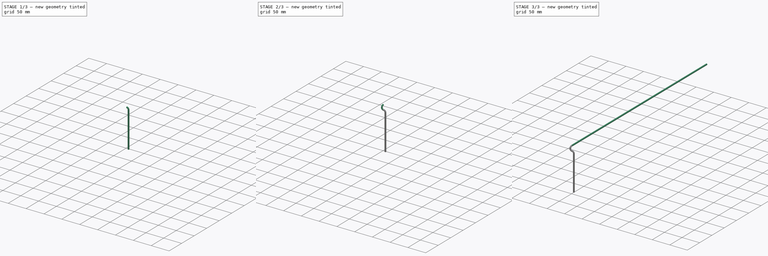
[diagram: build sequence overview — one tinted view per stage of 3, left to right]
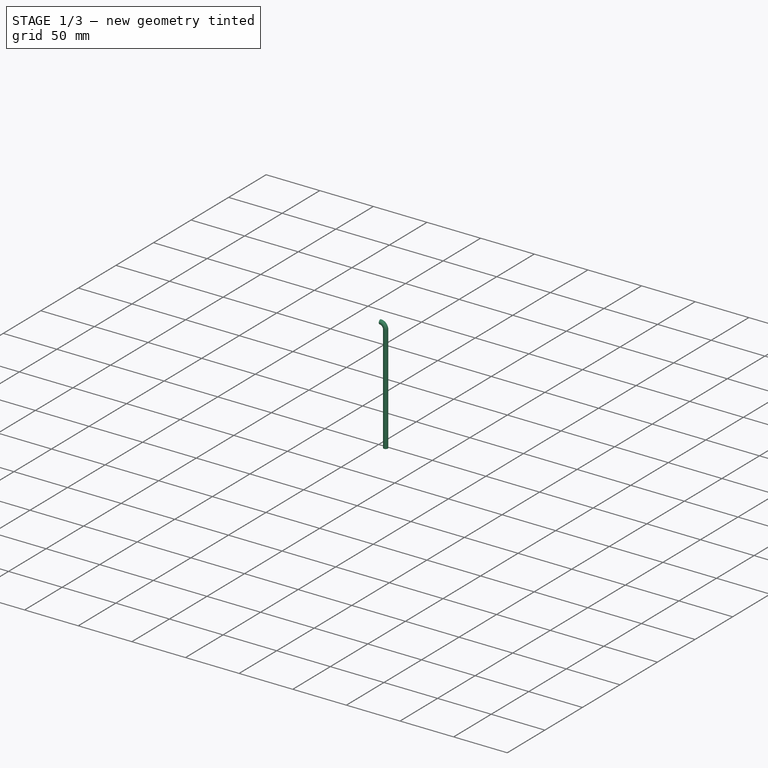
[diagram: stage 1 of 3 — iso view after this stage's code; geometry added in this stage tinted green]
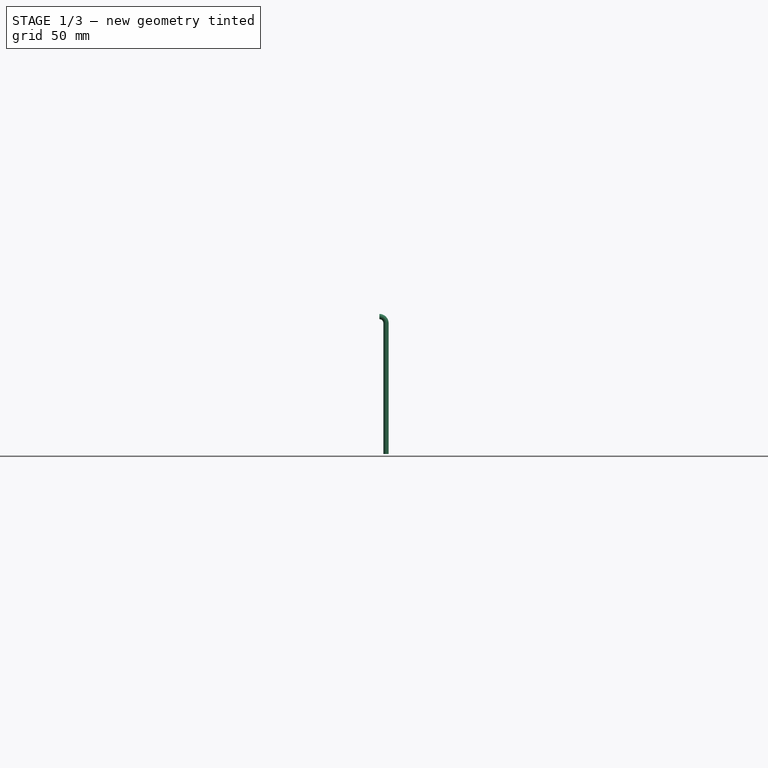
[diagram: stage 1 of 3 — front view after this stage's code; geometry added in this stage tinted green]
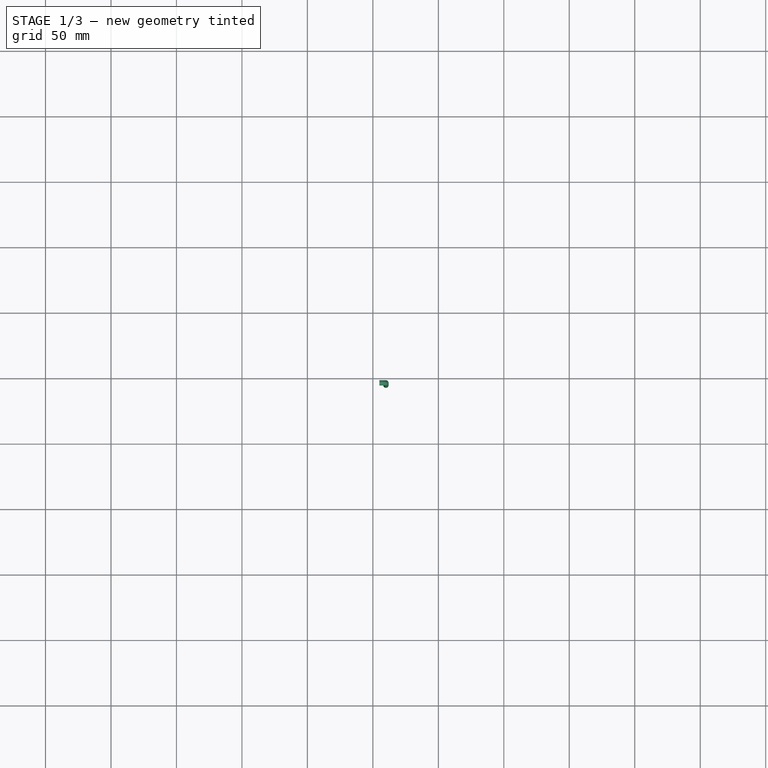
[diagram: stage 1 of 3 — top view after this stage's code; geometry added in this stage tinted green]
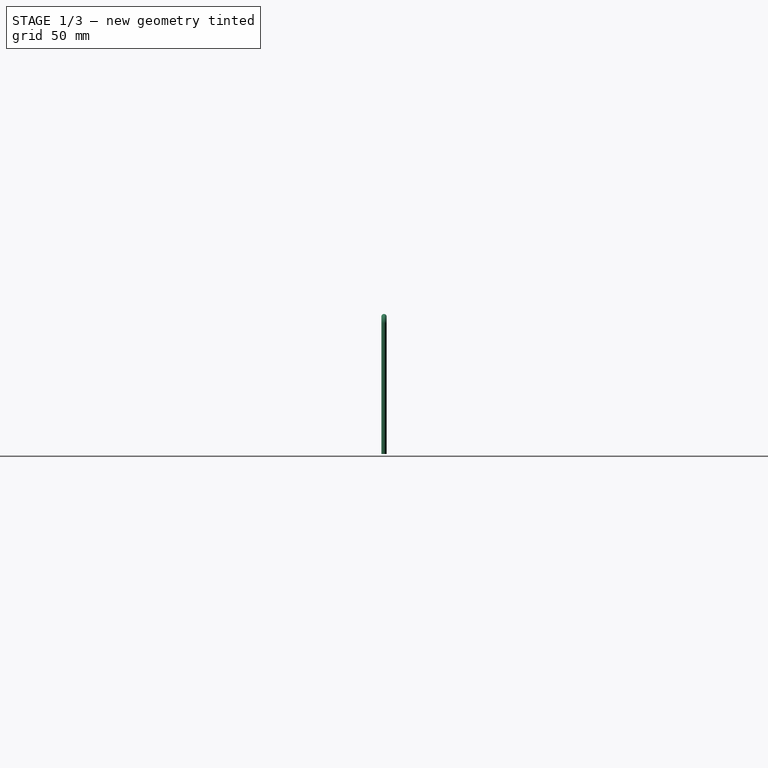
[diagram: stage 1 of 3 — right view after this stage's code; geometry added in this stage tinted green]
FCSTD DOCUMENT  (FreeCAD 0.17R11834 (Git))
Label: lower_wire_HT
License: All rights reserved
LicenseURL: http://en.wikipedia.org/wiki/All_rights_reserved
objects: Sketcher::SketchObject×7, Part::Sweep×5, Part::Compound×1
note: 13 computed .brp shape members not serialized (recipe doc carries the construction recipe); baked Part::Feature solids carry a one-line shape summary decoded from their .brp

FEATURE [Part::Sweep] Sweep003
  Frenet = true
  Sections = -> [Sketch007]
  Solid = true
  Spine = -> Sketch005 [Edge2]
  Transition = 1
FEATURE [Part::Sweep] Sweep004
  Frenet = true
  Sections = -> [Sketch007]
  Solid = true
  Spine = -> Sketch006 [Edge1]
  Transition = 1
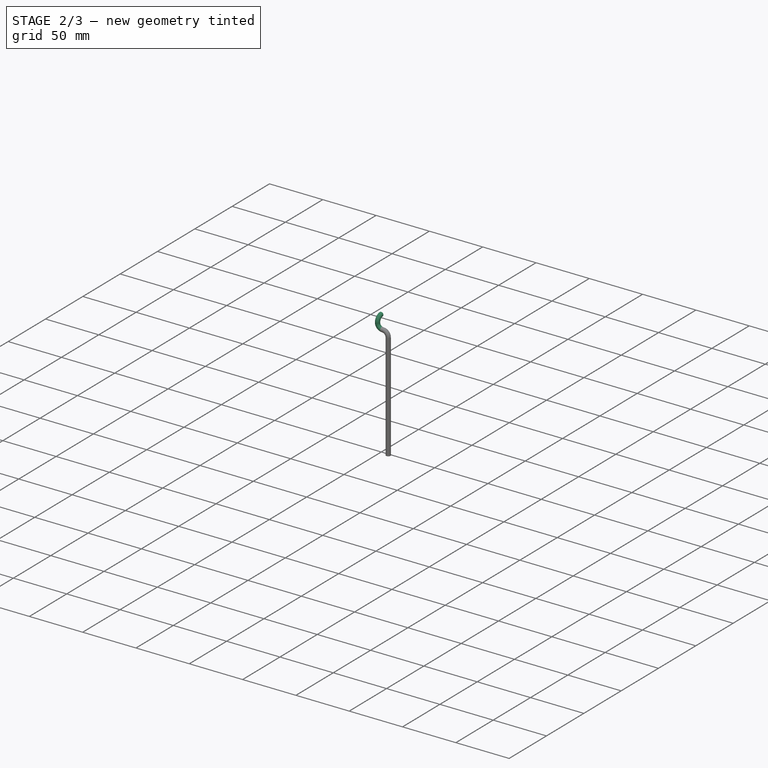
[diagram: stage 2 of 3 — iso view after this stage's code; geometry added in this stage tinted green]
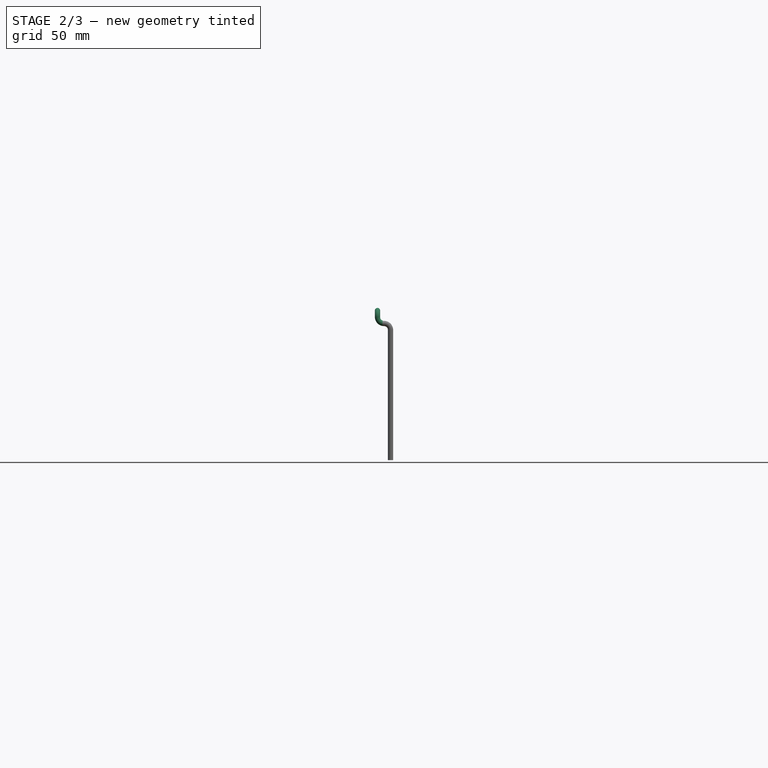
[diagram: stage 2 of 3 — front view after this stage's code; geometry added in this stage tinted green]
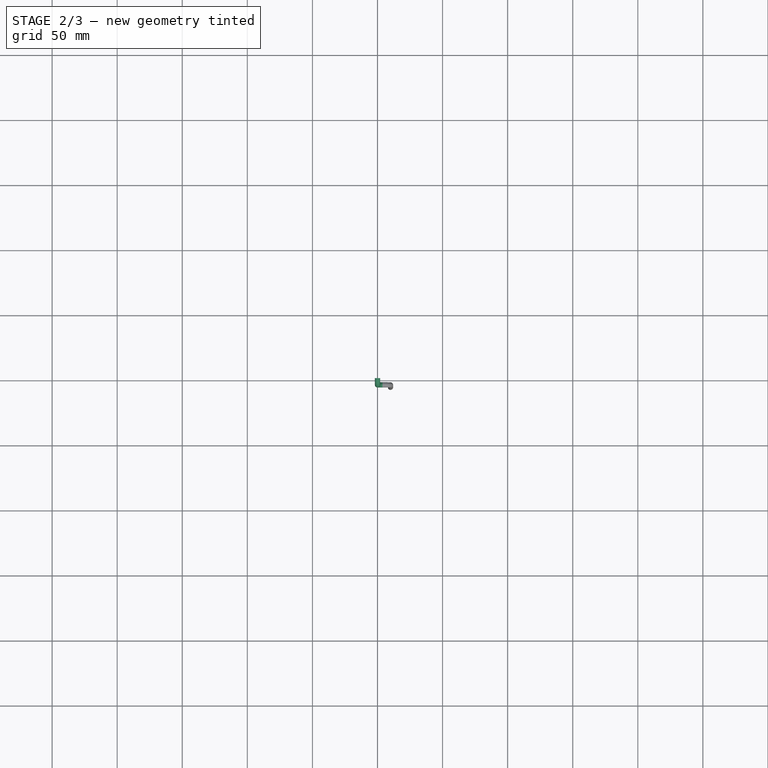
[diagram: stage 2 of 3 — top view after this stage's code; geometry added in this stage tinted green]
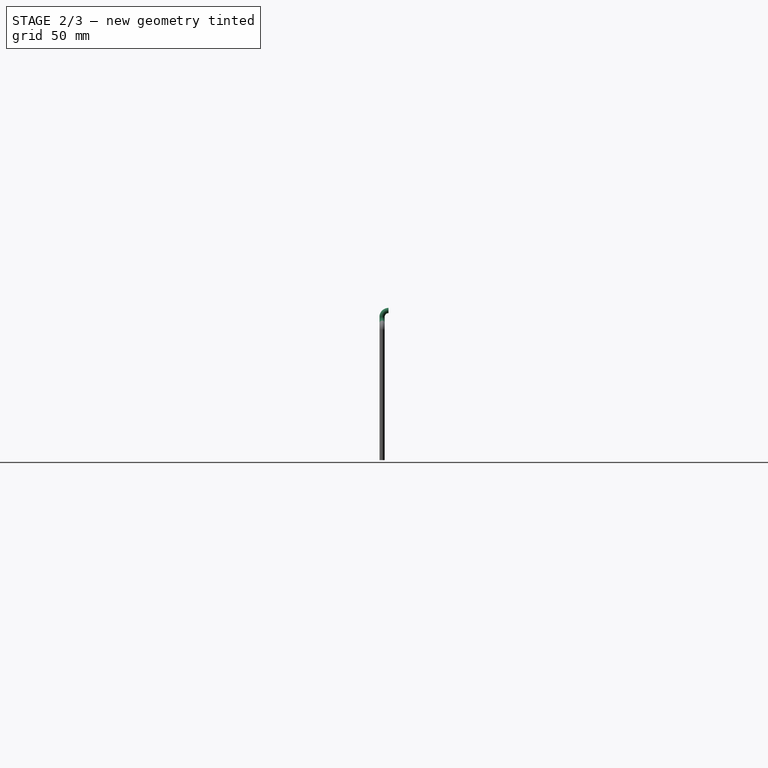
[diagram: stage 2 of 3 — right view after this stage's code; geometry added in this stage tinted green]
FEATURE [Part::Sweep] Sweep001
  Frenet = true
  Sections = -> [Sketch003]
  Solid = true
  Spine = -> Sketch001 [Edge1]
  Transition = 1
FEATURE [Part::Sweep] Sweep002
  Frenet = true
  Sections = -> [Sketch004]
  Solid = true
  Spine = -> Sketch005 [Edge1]
  Transition = 1
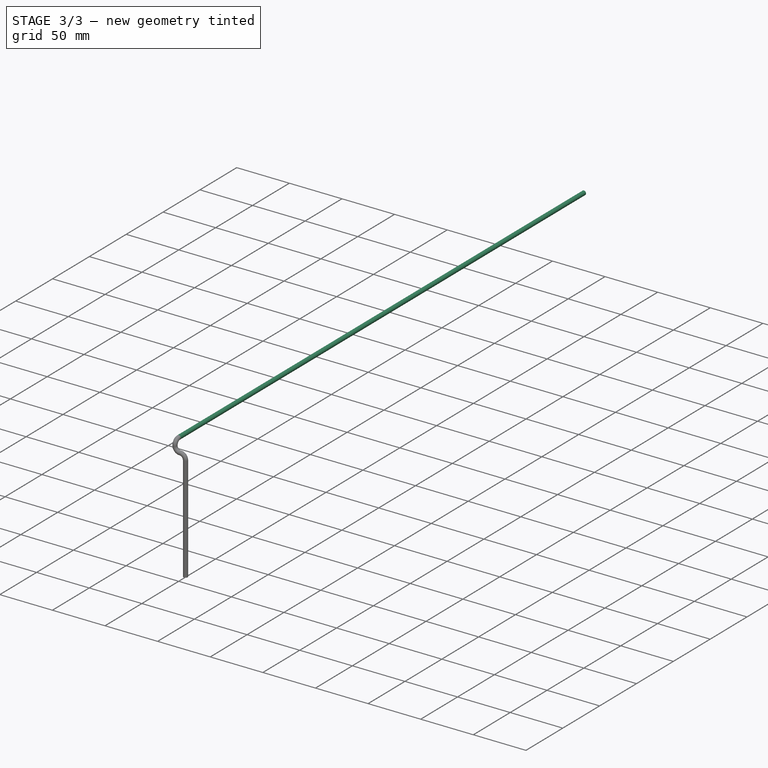
[diagram: stage 3 of 3 — iso view after this stage's code; geometry added in this stage tinted green]
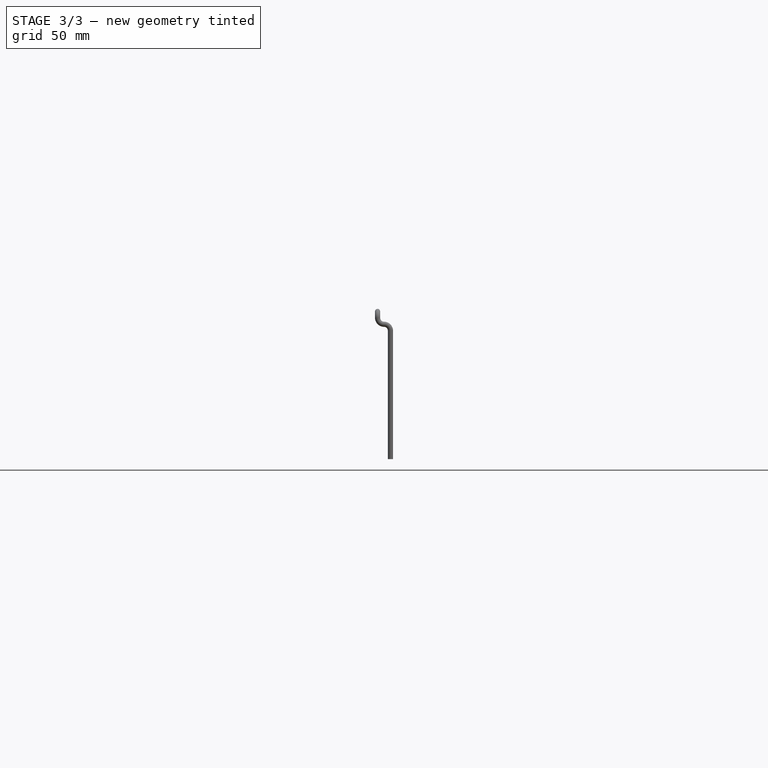
[diagram: stage 3 of 3 — front view after this stage's code; geometry added in this stage tinted green]
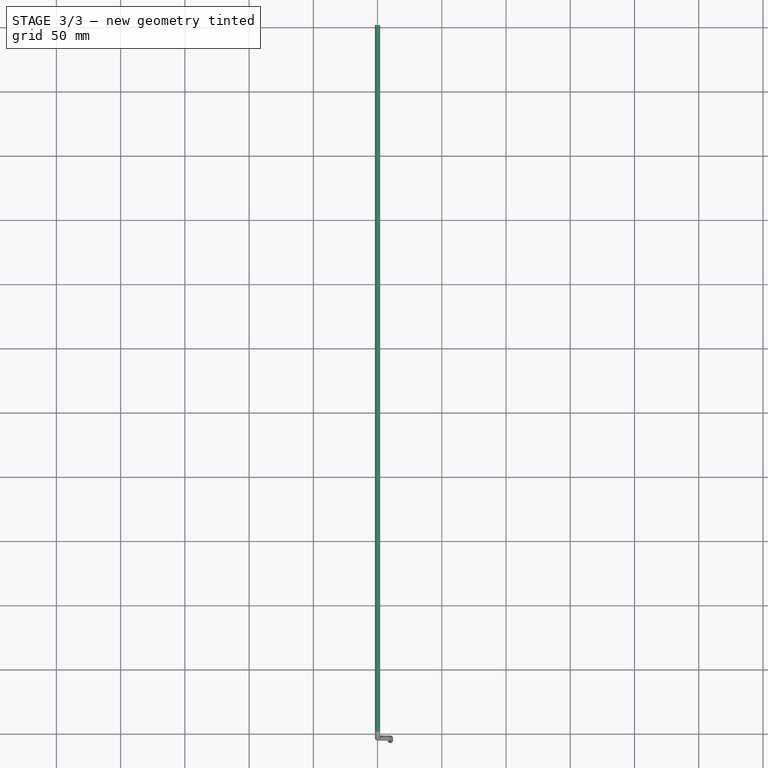
[diagram: stage 3 of 3 — top view after this stage's code; geometry added in this stage tinted green]
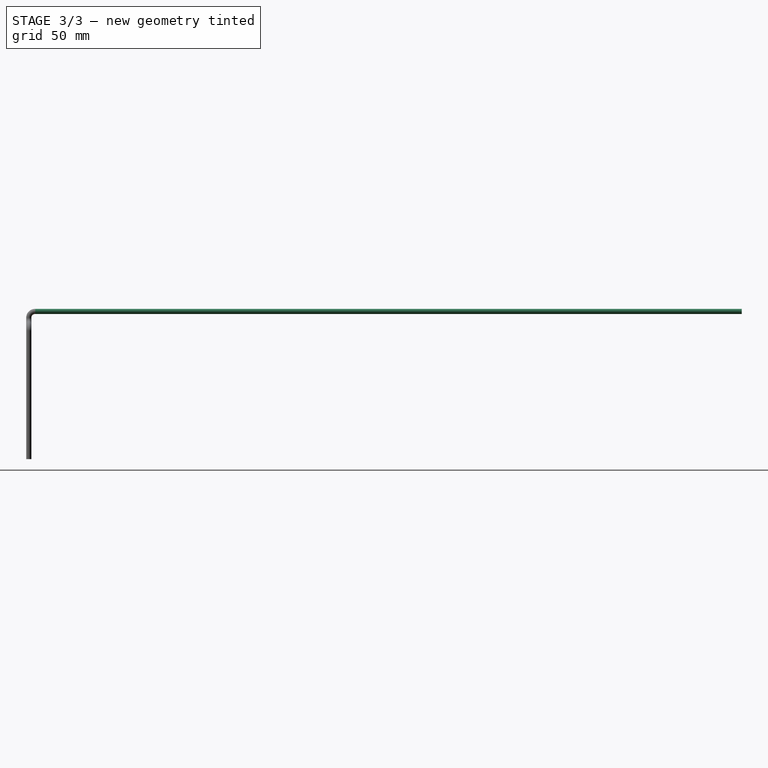
[diagram: stage 3 of 3 — right view after this stage's code; geometry added in this stage tinted green]
FEATURE [Sketcher::SketchObject] Sketch
  sketch-geometry (1):
    g0: LineSegment StartX=0 StartY=0 StartZ=0 EndX=0 EndY=550 EndZ=0
  constraints (3):
    c: Vertical(g0)
    c: Coincident(g0,g-1)
    c: DistanceY(g0,g0) = 550
FEATURE [Sketcher::SketchObject] Sketch001
  Placement = pos=(0,0,0) rot=(0.57735,0.57735,0.57735;2.0944rad)
  sketch-geometry (1):
    g0: ArcOfCircle CenterX=0 CenterY=-5 CenterZ=0 NormalX=0 NormalY=0 NormalZ=1 Radius=5 StartAngle=1.5708 EndAngle=3.14159
  constraints (4):
    c: Coincident(g0,g-1)
    c: DistanceX(g0,g-1) = 0
    c: DistanceY(g0,g-1) = 5
    c: DistanceX(g0,g-1) = 5
FEATURE [Sketcher::SketchObject] Sketch003
  Placement = pos=(0,0,0) rot=(-1,0,0;4.71239rad)
  sketch-geometry (1):
    g0: Circle CenterX=0 CenterY=0 CenterZ=0 NormalX=0 NormalY=0 NormalZ=1 Radius=2
  constraints (2):
    c: Coincident(g0,g-1)
    c: Radius(g0) = 2
FEATURE [Sketcher::SketchObject] Sketch004
  Placement = pos=(0,-5,-5) rot=(0,0,1;0rad)
  sketch-geometry (1):
    g0: Circle CenterX=0 CenterY=0 CenterZ=0 NormalX=0 NormalY=0 NormalZ=1 Radius=2
  constraints (2):
    c: Coincident(g0,g-1)
    c: Radius(g0) = 2
FEATURE [Sketcher::SketchObject] Sketch005
  Placement = pos=(0,-5,0) rot=(-1,0,0;4.71239rad)
  sketch-geometry (2):
    g0: ArcOfCircle CenterX=5 CenterY=-5 CenterZ=0 NormalX=0 NormalY=0 NormalZ=1 Radius=5 StartAngle=3.14159 EndAngle=4.71239
    g1: ArcOfCircle CenterX=5 CenterY=-15 CenterZ=0 NormalX=0 NormalY=0 NormalZ=1 Radius=5 StartAngle=0 EndAngle=1.5708
  constraints (9):
    c: DistanceY(g0,g-1) = 5
    c: DistanceX(g-1,g0) = 0
    c: Radius(g0) = 5
    c: DistanceY(g0,g-1) = 5
    c: DistanceX(g-1,g0) = 5
    c: Coincident(g1,g0)
    c: DistanceX(g-1,g1) = 10
    c: DistanceY(g1,g0) = 5
    c: Radius(g1) = 5
FEATURE [Sketcher::SketchObject] Sketch006
  Placement = pos=(0,-5,0) rot=(-1,0,0;4.71239rad)
  sketch-geometry (1):
    g0: LineSegment StartX=10 StartY=-15 StartZ=0 EndX=10 EndY=-115 EndZ=0
  constraints (4):
    c: Vertical(g0)
    c: DistanceY(g0,g-1) = 15
    c: DistanceY(g0,g0) = 100
    c: DistanceX(g-1,g0) = 10
FEATURE [Sketcher::SketchObject] Sketch007
  Placement = pos=(0,0,-15) rot=(0,0,1;0rad)
  sketch-geometry (1):
    g0: Circle CenterX=10 CenterY=-5 CenterZ=0 NormalX=0 NormalY=0 NormalZ=1 Radius=2
  constraints (3):
    c: DistanceX(g-1,g0) = 10
    c: DistanceY(g0,g-1) = 5
    c: Radius(g0) = 2
FEATURE [Part::Sweep] Sweep
  Frenet = true
  Sections = -> [Sketch003]
  Solid = true
  Spine = -> Sketch [Edge1]
  Transition = 1
FEATURE [Part::Compound] Compound
  Links = -> [Sweep003,Sweep002,Sweep,Sweep001,Sweep004]
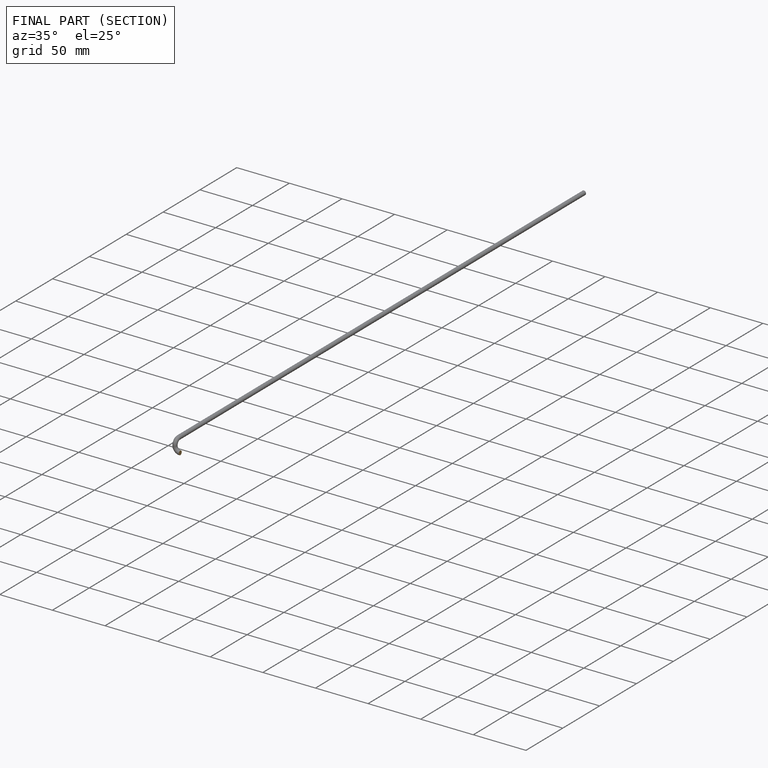
[diagram: finished part — half-section view (interior)]
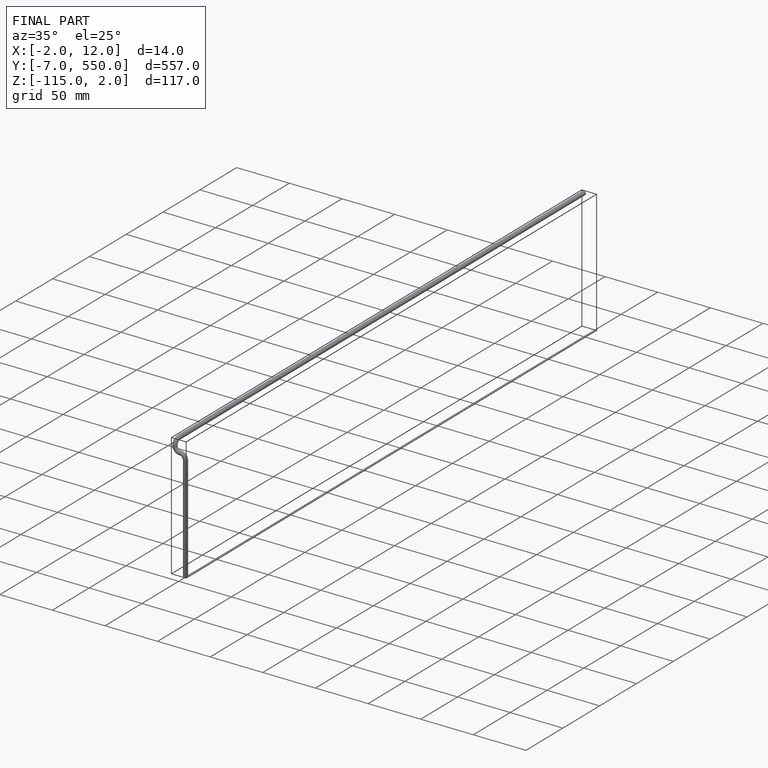
[diagram: finished part — iso view with bounding-box wireframe]
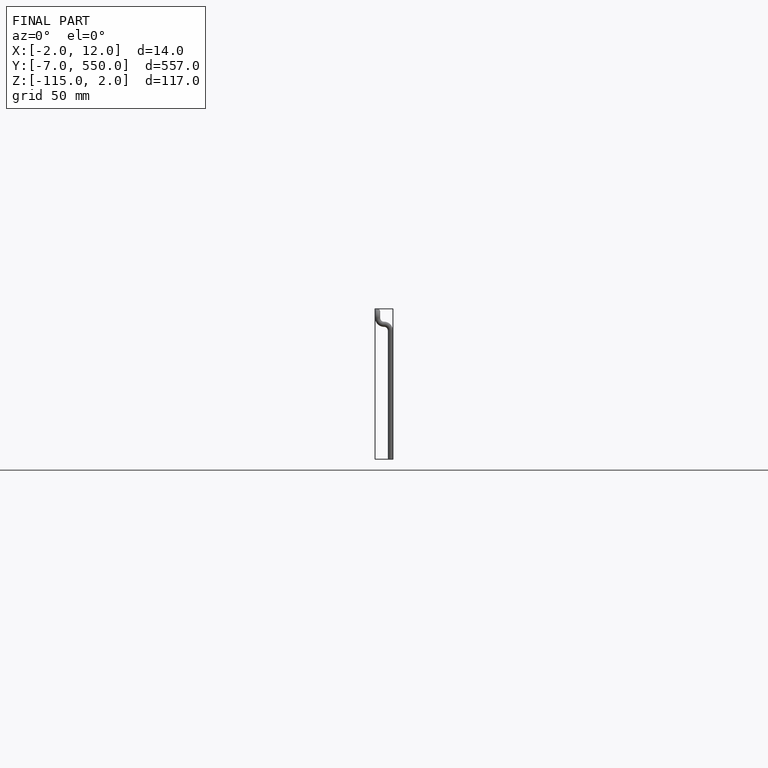
[diagram: finished part — front view with bounding-box wireframe]
